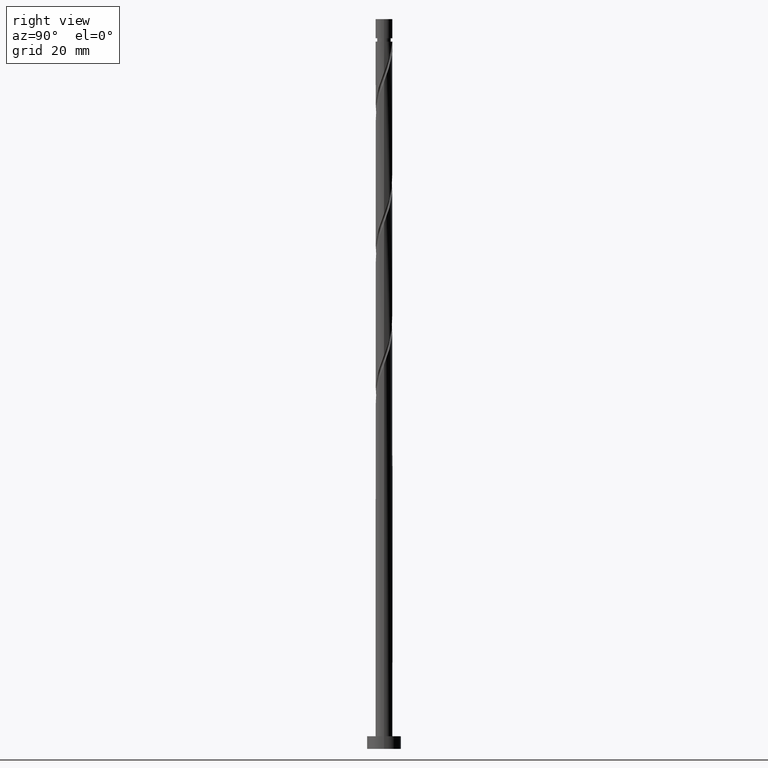
[diagram: clean part render]
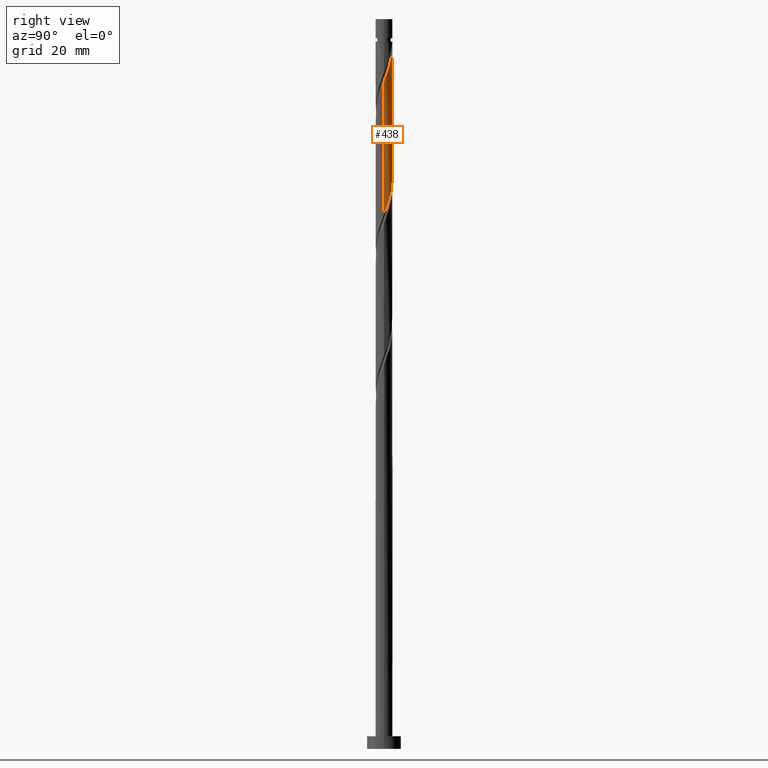
[diagram: same view with one face highlighted and labeled with its STEP entity id]
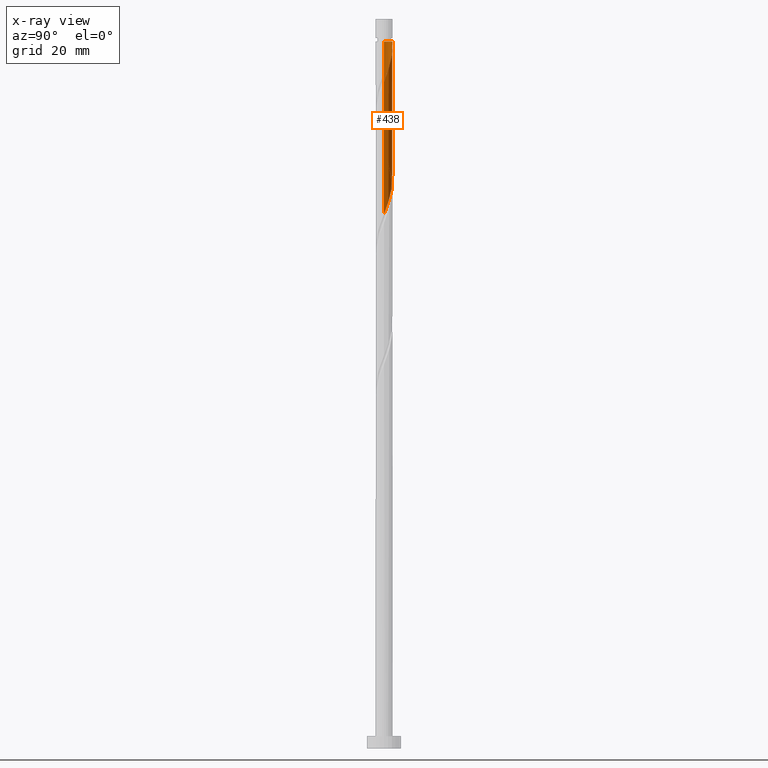
[diagram: x-ray of the same camera — body ghosted, the highlighted face saturated]
A machine part, right view. The second image highlights one B-rep face of the part: STEP entity #438.
The next image is the same camera in x-ray: the body ghosted, the highlighted face saturated — about 0% of this face is hidden behind the body in this view.
In plain terms, the highlighted cylindrical surface (edge-blend (fillet) strip) has radius 2 mm, axis along (-0, -0, -1).
Its self-contained STEP definition (entity closure, byte-faithful):
#1 = CARTESIAN_POINT ( 'NONE',  ( -2.000000000000000000, -9.271346355044444952E-16, 142.7478650425123021 ) ) ;
#7 = VERTEX_POINT ( 'NONE', #1137 ) ;
#51 = ORIENTED_EDGE ( 'NONE', *, *, #792, .F. ) ;
#62 = CYLINDRICAL_SURFACE ( 'NONE', #1719, 2.000000000000000000 ) ;
#113 = CARTESIAN_POINT ( 'NONE',  ( 0.8917189533347243957, 1.790205940182196809, 131.9620761650799636 ) ) ;
#129 = CARTESIAN_POINT ( 'NONE',  ( -1.498412303996174533, 1.324673758792282108, 138.9065206095244491 ) ) ;
#136 = CARTESIAN_POINT ( 'NONE',  ( 1.324673758792282552, 1.498412303996174311, 130.5731872761911063 ) ) ;
#141 = CARTESIAN_POINT ( 'NONE',  ( 1.521943481029063516, 1.324015695162687356, 129.8787428317466777 ) ) ;
#189 = ORIENTED_EDGE ( 'NONE', *, *, #332, .T. ) ;
#222 = CARTESIAN_POINT ( 'NONE',  ( 0.8849929959097678767, 1.812764992401018072, 163.2120761650800205 ) ) ;
#237 = CIRCLE ( 'NONE', #569, 1.999999999999992228 ) ;
#271 = CARTESIAN_POINT ( 'NONE',  ( -0.8849929959097655452, 1.812764992401016073, 136.8231872761911347 ) ) ;
#306 = DIRECTION ( 'NONE',  ( -0.000000000000000000, -0.000000000000000000, -1.000000000000000000 ) ) ;
#313 = EDGE_CURVE ( 'NONE', #660, #1648, #1745, .T. ) ;
#331 = CARTESIAN_POINT ( 'NONE',  ( 2.000000000000003109, -3.065525810942096843E-16, 157.2873983987588531 ) ) ;
#332 = EDGE_CURVE ( 'NONE', #660, #7, #1296, .T. ) ;
#334 = CARTESIAN_POINT ( 'NONE',  ( -0.3979949748426482858, 1.960000000000000853, 166.6842983873022206 ) ) ;
#359 = CARTESIAN_POINT ( 'NONE',  ( -1.999999999999992228, 0.000000000000000000, 166.6842983873022206 ) ) ;
#365 = EDGE_CURVE ( 'NONE', #636, #797, #1663, .T. ) ;
#373 = CARTESIAN_POINT ( 'NONE',  ( 2.000000000000000000, 0.06148390331534731024, 126.2443620638737798 ) ) ;
#390 = CARTESIAN_POINT ( 'NONE',  ( -2.000000000000000000, -9.271346355044444952E-16, 142.7478650425123021 ) ) ;
#392 = CARTESIAN_POINT ( 'NONE',  ( 1.960000000000002185, 0.3979949748426485634, 158.3509650539688778 ) ) ;
#438 = ADVANCED_FACE ( 'NONE', ( #454 ), #62, .T. ) ;
#440 = ORIENTED_EDGE ( 'NONE', *, *, #1434, .T. ) ;
#454 = FACE_OUTER_BOUND ( 'NONE', #1348, .T. ) ;
#507 = CARTESIAN_POINT ( 'NONE',  ( 0.1399560795713529482, 2.012397032465267799, 134.0454094984133349 ) ) ;
#540 = CARTESIAN_POINT ( 'NONE',  ( -1.104504345536226673, 1.667354236715039129, 137.5176317206355350 ) ) ;
#569 = AXIS2_PLACEMENT_3D ( 'NONE', #1366, #945, #1217 ) ;
#598 = DIRECTION ( 'NONE',  ( -0.000000000000000000, -0.000000000000000000, -1.000000000000000000 ) ) ;
#622 = VECTOR ( 'NONE', #1208, 1000.000000000000000 ) ;
#636 = VERTEX_POINT ( 'NONE', #359 ) ;
#637 = CARTESIAN_POINT ( 'NONE',  ( 0.3856594865056714450, 1.980049565276634782, 164.6009650539688778 ) ) ;
#651 = CARTESIAN_POINT ( 'NONE',  ( 2.000000000000000000, 2.572050924302653158E-15, 126.0811983758456449 ) ) ;
#660 = VERTEX_POINT ( 'NONE', #331 ) ;
#665 = CARTESIAN_POINT ( 'NONE',  ( -0.1228517034671581937, 1.996223298870949403, 134.7398539428577635 ) ) ;
#669 = CARTESIAN_POINT ( 'NONE',  ( 2.000000000000003109, -3.065525810942096843E-16, 157.2873983987588815 ) ) ;
#681 = CARTESIAN_POINT ( 'NONE',  ( 0.3979949748426492295, 1.959999999999999520, 133.3509650539688778 ) ) ;
#772 = CARTESIAN_POINT ( 'NONE',  ( 0.6353262412077195220, 1.896407278838825761, 163.9065206095243923 ) ) ;
#792 = EDGE_CURVE ( 'NONE', #797, #7, #1617, .T. ) ;
#796 = CARTESIAN_POINT ( 'NONE',  ( -0.6353262412077169685, 1.896407278838823984, 136.1287428317466208 ) ) ;
#797 = VERTEX_POINT ( 'NONE', #390 ) ;
#799 = CARTESIAN_POINT ( 'NONE',  ( 1.672808912829666150, 1.127404036555501810, 160.4342983873021922 ) ) ;
#805 = CARTESIAN_POINT ( 'NONE',  ( -0.3856594865056693355, 1.980049565276632340, 135.4342983873022206 ) ) ;
#817 = CARTESIAN_POINT ( 'NONE',  ( -1.959999999999999520, 0.3979949748426487299, 141.6842983873021922 ) ) ;
#819 = CARTESIAN_POINT ( 'NONE',  ( -0.1399560795713451489, 2.012397032465269575, 165.9898539428577919 ) ) ;
#859 = CARTESIAN_POINT ( 'NONE',  ( 1.324015695162691575, 1.521943481029063516, 161.8231872761911347 ) ) ;
#945 = DIRECTION ( 'NONE',  ( -0.000000000000000000, -0.000000000000000000, -1.000000000000000000 ) ) ;
#1049 = CARTESIAN_POINT ( 'NONE',  ( 1.980049565276633006, 0.3856594865056681698, 127.1009650539688920 ) ) ;
#1057 = ORIENTED_EDGE ( 'NONE', *, *, #365, .F. ) ;
#1137 = CARTESIAN_POINT ( 'NONE',  ( 2.000000000000000000, 2.572050924302653158E-15, 126.0811983758456449 ) ) ;
#1143 = ORIENTED_EDGE ( 'NONE', *, *, #313, .F. ) ;
#1204 = CARTESIAN_POINT ( 'NONE',  ( 1.896407278838824428, 0.6353262412077160803, 127.7954094984133349 ) ) ;
#1207 = CARTESIAN_POINT ( 'NONE',  ( 1.907602967534735461, 0.6560338701139445394, 159.0454094984133917 ) ) ;
#1208 = DIRECTION ( 'NONE',  ( -0.000000000000000000, -0.000000000000000000, -1.000000000000000000 ) ) ;
#1214 = CARTESIAN_POINT ( 'NONE',  ( 1.667354236715039351, 1.104504345536226007, 129.1842983873021922 ) ) ;
#1217 = DIRECTION ( 'NONE',  ( -1.000000000000000000, 0.000000000000000000, 0.000000000000000000 ) ) ;
#1249 = CARTESIAN_POINT ( 'NONE',  ( -2.000000000000000000, 0.000000000000000000, 172.0000000000000000 ) ) ;
#1265 = VECTOR ( 'NONE', #306, 1000.000000000000000 ) ;
#1268 = CARTESIAN_POINT ( 'NONE',  ( 0.000000000000000000, 0.000000000000000000, 172.0000000000000000 ) ) ;
#1288 = CARTESIAN_POINT ( 'NONE',  ( 1.104504345536228671, 1.667354236715040683, 162.5176317206354781 ) ) ;
#1296 = LINE ( 'NONE', #1447, #622 ) ;
#1344 = CARTESIAN_POINT ( 'NONE',  ( -1.907602967534732130, 0.6560338701139447615, 140.9898539428578204 ) ) ;
#1348 = EDGE_LOOP ( 'NONE', ( #1143, #189, #51, #1057, #440 ) ) ;
#1352 = CARTESIAN_POINT ( 'NONE',  ( -1.324015695162687578, 1.521943481029062850, 138.2120761650800205 ) ) ;
#1366 = CARTESIAN_POINT ( 'NONE',  ( 0.000000000000000000, 0.000000000000000000, 166.6842983873022206 ) ) ;
#1411 = CARTESIAN_POINT ( 'NONE',  ( -0.3979949748426482858, 1.960000000000000853, 166.6842983873022206 ) ) ;
#1434 = EDGE_CURVE ( 'NONE', #636, #1648, #237, .T. ) ;
#1447 = CARTESIAN_POINT ( 'NONE',  ( 2.000000000000000000, 2.449293598294706414E-16, 172.0000000000000000 ) ) ;
#1452 = CARTESIAN_POINT ( 'NONE',  ( 1.127404036555502920, 1.672808912829662153, 131.2676317206355350 ) ) ;
#1460 = CARTESIAN_POINT ( 'NONE',  ( 1.812764992401016961, 0.8849929959097641019, 128.4898539428577919 ) ) ;
#1468 = CARTESIAN_POINT ( 'NONE',  ( 0.6560338701139463158, 1.907602967534731686, 132.6565206095244491 ) ) ;
#1484 = CARTESIAN_POINT ( 'NONE',  ( -1.790205940182197031, 0.8917189533347232855, 140.2954094984133064 ) ) ;
#1488 = CARTESIAN_POINT ( 'NONE',  ( 0.1228517034671602476, 1.996223298870951846, 165.2954094984133064 ) ) ;
#1515 = DIRECTION ( 'NONE',  ( -1.000000000000000000, 0.000000000000000000, 0.000000000000000000 ) ) ;
#1587 = CARTESIAN_POINT ( 'NONE',  ( -1.672808912829662820, 1.127404036555501587, 139.6009650539689346 ) ) ;
#1609 = CARTESIAN_POINT ( 'NONE',  ( 2.000000000000001332, 0.2010075630518500800, 157.8208247679480962 ) ) ;
#1617 =( BOUNDED_CURVE ( )  B_SPLINE_CURVE ( 2, ( #1, #1720, #817, #1344, #1484, #1587, #129, #1352, #540, #271, #796, #805, #665, #507, #681, #1468, #113, #1452, #136, #141, #1214, #1460, #1204, #1049, #1730, #373, #651 ),
 .UNSPECIFIED., .F., .T. ) 
 B_SPLINE_CURVE_WITH_KNOTS ( ( 3, 2, 2, 2, 2, 2, 2, 2, 2, 2, 2, 2, 2, 3 ),
 ( 0.4295317669814461836, 0.4375000000000000000, 0.4479166666666666852, 0.4583333333333333148, 0.4687500000000000000, 0.4791666666666666852, 0.4895833333333333148, 0.5000000000000000000, 0.5104166666666666297, 0.5208333333333333703, 0.5312500000000000000, 0.5416666666666666297, 0.5520833333333333703, 0.5545317669814462391 ),
 .UNSPECIFIED. ) 
 CURVE ( )  GEOMETRIC_REPRESENTATION_ITEM ( )  RATIONAL_B_SPLINE_CURVE ( ( 0.9062941362546451662, 0.9031415850403492485, 0.9090909090909247148, 0.9013135103398430825, 0.9090909090909247148, 0.9013135103398430825, 0.9090909090909247148, 0.9013135103398430825, 0.9090909090909247148, 0.9013135103398430825, 0.9090909090909247148, 0.9013135103398430825, 0.9090909090909247148, 0.9013135103398430825, 0.9090909090909247148, 0.9013135103398430825, 0.9090909090909247148, 0.9013135103398430825, 0.9090909090909247148, 0.9013135103398430825, 0.9090909090909247148, 0.9013135103398430825, 0.9090909090909247148, 0.9013135103398430825, 0.9090909090909247148, 0.9072628343904185488, 0.9062941362546450552 ) ) 
 REPRESENTATION_ITEM ( '' )  );
#1648 = VERTEX_POINT ( 'NONE', #334 ) ;
#1663 = LINE ( 'NONE', #1249, #1265 ) ;
#1719 = AXIS2_PLACEMENT_3D ( 'NONE', #1268, #598, #1515 ) ;
#1720 = CARTESIAN_POINT ( 'NONE',  ( -2.000000000000001332, 0.2010075630518412537, 142.2144386733230021 ) ) ;
#1723 = CARTESIAN_POINT ( 'NONE',  ( 1.790205940182200139, 0.8917189533347229524, 159.7398539428577919 ) ) ;
#1730 = CARTESIAN_POINT ( 'NONE',  ( 1.996223298870950291, 0.1228517034671573194, 126.4065206095244491 ) ) ;
#1744 = CARTESIAN_POINT ( 'NONE',  ( 1.498412303996177863, 1.324673758792282330, 161.1287428317465924 ) ) ;
#1745 =( BOUNDED_CURVE ( )  B_SPLINE_CURVE ( 2, ( #669, #1609, #392, #1207, #1723, #799, #1744, #859, #1288, #222, #772, #637, #1488, #819, #1411 ),
 .UNSPECIFIED., .F., .T. ) 
 B_SPLINE_CURVE_WITH_KNOTS ( ( 3, 2, 2, 2, 2, 2, 2, 3 ),
 ( 0.6795317669814465722, 0.6875000000000000000, 0.6979166666666667407, 0.7083333333333331483, 0.7187499999999998890, 0.7291666666666666297, 0.7395833333333330373, 0.7499999999999997780 ),
 .UNSPECIFIED. ) 
 CURVE ( )  GEOMETRIC_REPRESENTATION_ITEM ( )  RATIONAL_B_SPLINE_CURVE ( ( 0.9062941362546503843, 0.9031415850403550216, 0.9090909090909304879, 0.9013135103398485226, 0.9090909090909304879, 0.9013135103398485226, 0.9090909090909304879, 0.9013135103398485226, 0.9090909090909304879, 0.9013135103398485226, 0.9090909090909304879, 0.9013135103398485226, 0.9090909090909304879, 0.9013135103398487447, 0.9090909090909302659 ) ) 
 REPRESENTATION_ITEM ( '' )  );